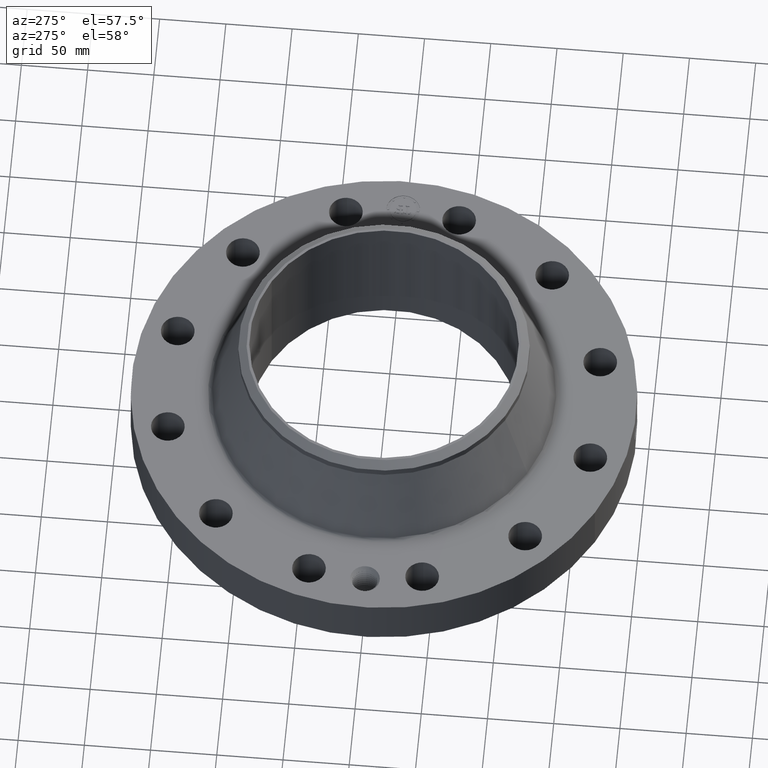
[diagram: clean part render]
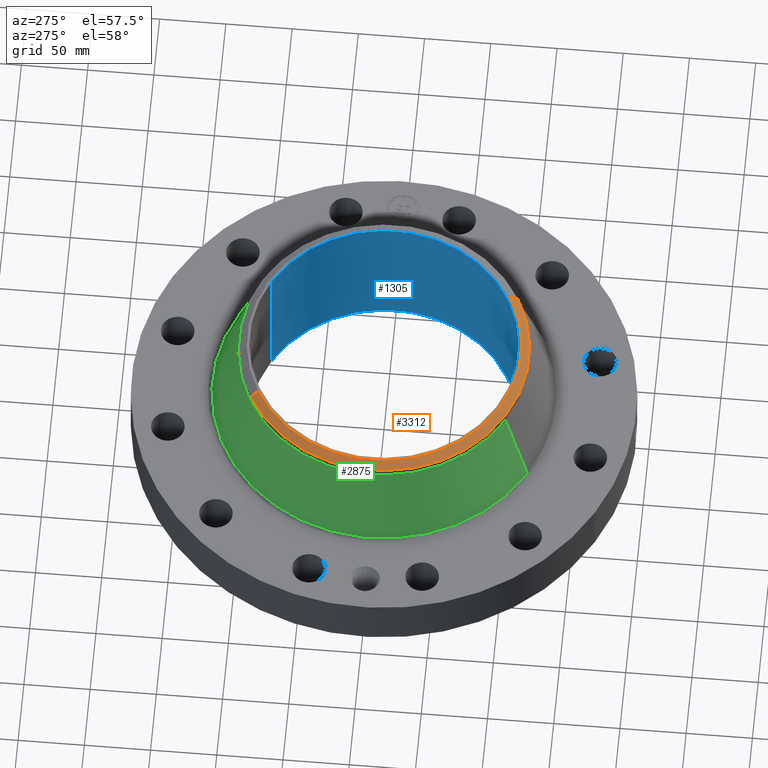
[diagram: same view with three faces highlighted in distinct colors, each labeled with its STEP entity id]
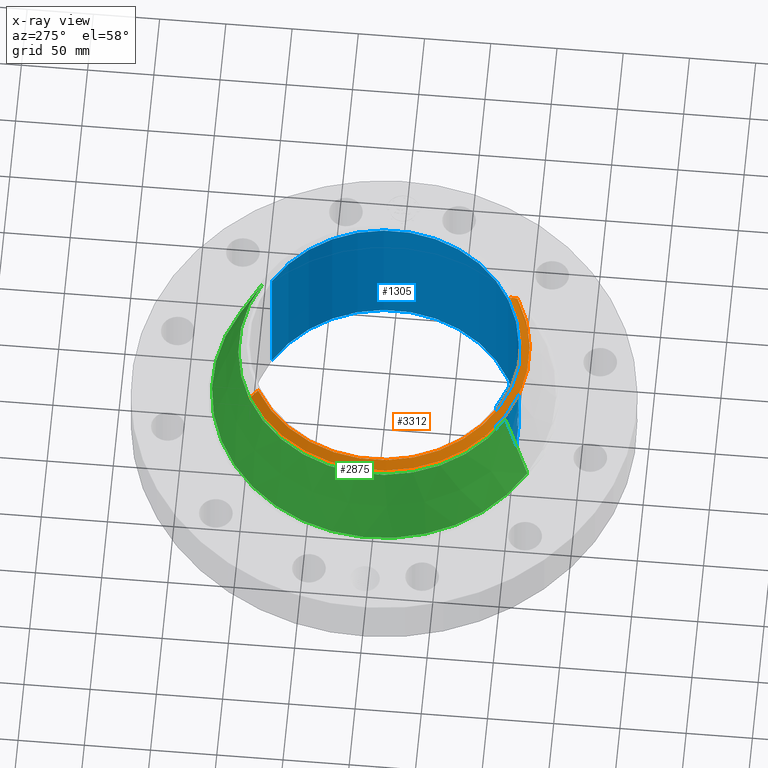
[diagram: x-ray of the same camera — body ghosted, the three highlighted faces saturated]
A machine part, auxiliary view with three faces highlighted in distinct colors.
The next image is the same camera in x-ray (body ghosted, the three faces saturated) — at least one of them is partly hidden behind the body in this view.
Their STEP definitions:

[orange] entity #3312 — the highlighted conical surface has half-angle 52.5 deg.
#2501=AXIS2_PLACEMENT_3D('Circle Axis2P3D',#2499,#2500,$) ;
#3277=AXIS2_PLACEMENT_3D('Cone Axis2P3D',#3274,#3275,#3276) ;
#3295=AXIS2_PLACEMENT_3D('Circle Axis2P3D',#3293,#3294,$) ;
#3302=AXIS2_PLACEMENT_3D('Circle Axis2P3D',#3300,#3301,$) ;
#2494=CARTESIAN_POINT('Vertex',(1.95089765422,-3.57109420236,4.44000000002)) ;
#2496=CARTESIAN_POINT('Vertex',(-1.95089765422,3.57109420236,4.44000000002)) ;
#2499=CARTESIAN_POINT('Axis2P3D Location',(0.,0.,4.44000000002)) ;
#3274=CARTESIAN_POINT('Axis2P3D Location',(0.,0.,4.44000000002)) ;
#3279=CARTESIAN_POINT('Line Origine',(2.00980942665,-3.67893147847,4.34571092015)) ;
#3283=CARTESIAN_POINT('Vertex',(2.06872119909,-3.78676875457,4.25142184029)) ;
#3286=CARTESIAN_POINT('Line Origine',(-2.00980942665,3.67893147847,4.34571092015)) ;
#3290=CARTESIAN_POINT('Vertex',(-2.06872119909,3.78676875457,4.25142184029)) ;
#3293=CARTESIAN_POINT('Axis2P3D Location',(0.,0.,4.25142184029)) ;
#3297=CARTESIAN_POINT('Vertex',(-2.06872119909,-3.78676875457,4.25142184029)) ;
#3300=CARTESIAN_POINT('Axis2P3D Location',(0.,0.,4.25142184029)) ;
#2500=DIRECTION('Axis2P3D Direction',(0.,0.,-0.0393700787402)) ;
#3275=DIRECTION('Axis2P3D Direction',(-0.,-0.,-0.0393700787402)) ;
#3276=DIRECTION('Axis2P3D XDirection',(-0.0188750212049,0.0345504945626,0.)) ;
#3280=DIRECTION('Vector Direction',(0.014974561121,-0.02741075027,-0.023966985394)) ;
#3287=DIRECTION('Vector Direction',(-0.014974561121,0.02741075027,-0.023966985394)) ;
#3294=DIRECTION('Axis2P3D Direction',(0.,0.,-0.0393700787402)) ;
#3301=DIRECTION('Axis2P3D Direction',(0.,0.,-0.0393700787402)) ;
#3281=VECTOR('Line Direction',#3280,0.0393700787402) ;
#3288=VECTOR('Line Direction',#3287,0.0393700787402) ;
#3306=ORIENTED_EDGE('',*,*,#3285,.F.) ;
#3307=ORIENTED_EDGE('',*,*,#2503,.F.) ;
#3308=ORIENTED_EDGE('',*,*,#3292,.T.) ;
#3309=ORIENTED_EDGE('',*,*,#3299,.T.) ;
#3310=ORIENTED_EDGE('',*,*,#3304,.F.) ;
#3312=ADVANCED_FACE('PartBody',(#3311),#3278,.T.) ;
#2502=CIRCLE('generated circle',#2501,4.0692401575) ;
#3296=CIRCLE('generated circle',#3295,4.31500000002) ;
#3303=CIRCLE('generated circle',#3302,4.31500000002) ;
#3278=CONICAL_SURFACE('Cone',#3277,4.0692401575,0.916297857297) ;
#2503=EDGE_CURVE('',#2497,#2495,#2502,.F.) ;
#3285=EDGE_CURVE('',#2495,#3284,#3282,.T.) ;
#3292=EDGE_CURVE('',#2497,#3291,#3289,.T.) ;
#3299=EDGE_CURVE('',#3291,#3298,#3296,.F.) ;
#3304=EDGE_CURVE('',#3284,#3298,#3303,.T.) ;
#3305=EDGE_LOOP('',(#3306,#3307,#3308,#3309,#3310)) ;
#3311=FACE_OUTER_BOUND('',#3305,.T.) ;
#3282=LINE('Line',#3279,#3281) ;
#3289=LINE('Line',#3286,#3288) ;
#2495=VERTEX_POINT('',#2494) ;
#2497=VERTEX_POINT('',#2496) ;
#3284=VERTEX_POINT('',#3283) ;
#3291=VERTEX_POINT('',#3290) ;
#3298=VERTEX_POINT('',#3297) ;

[blue] entity #1305 — the highlighted cylindrical surface (partial cylindrical patch) has radius 101.359 mm, axis along (0, 0, -1).
#214=AXIS2_PLACEMENT_3D('Circle Axis2P3D',#212,#213,$) ;
#1236=AXIS2_PLACEMENT_3D('Cylinder Axis2P3D',#1233,#1234,#1235) ;
#1240=AXIS2_PLACEMENT_3D('Circle Axis2P3D',#1238,#1239,$) ;
#212=CARTESIAN_POINT('Axis2P3D Location',(0.,0.,0.0600000000002)) ;
#216=CARTESIAN_POINT('Vertex',(1.91314761181,3.50199321324,0.0600000000002)) ;
#218=CARTESIAN_POINT('Vertex',(-1.91314761181,-3.50199321324,0.0600000000002)) ;
#1233=CARTESIAN_POINT('Axis2P3D Location',(0.,0.,2.25000000001)) ;
#1238=CARTESIAN_POINT('Axis2P3D Location',(0.,0.,4.44000000002)) ;
#1242=CARTESIAN_POINT('Vertex',(1.91314761181,3.50199321324,4.44000000002)) ;
#1244=CARTESIAN_POINT('Vertex',(-1.91314761181,-3.50199321324,4.44000000002)) ;
#1247=CARTESIAN_POINT('Line Origine',(1.91314761181,3.50199321324,2.25000000001)) ;
#1252=CARTESIAN_POINT('Line Origine',(-1.91314761181,-3.50199321324,2.25000000001)) ;
#1264=CARTESIAN_POINT('Control Point',(0.219395640473,-3.98446430566,0.820143615352)) ;
#1265=CARTESIAN_POINT('Control Point',(0.206921908816,-3.98515114387,0.797310602708)) ;
#1266=CARTESIAN_POINT('Control Point',(0.191479279916,-3.98595249709,0.776102972224)) ;
#1267=CARTESIAN_POINT('Control Point',(0.17334786153,-3.98680640054,0.75703273259)) ;
#1268=CARTESIAN_POINT('Control Point',(0.112155204432,-3.98927553641,0.707564028498)) ;
#1269=CARTESIAN_POINT('Control Point',(0.0350142039902,-3.99087971721,0.684034092529)) ;
#1270=CARTESIAN_POINT('Control Point',(-0.0195261078202,-3.99100007172,0.682387726651)) ;
#1271=CARTESIAN_POINT('Control Point',(-0.124101324567,-3.98923588509,0.707512475019)) ;
#1272=CARTESIAN_POINT('Control Point',(-0.203140141368,-3.98558147934,0.78038412542)) ;
#1273=CARTESIAN_POINT('Control Point',(-0.23212787438,-3.98378084191,0.826576361524)) ;
#1274=CARTESIAN_POINT('Control Point',(-0.255826572315,-3.98229644891,0.904741363627)) ;
#1275=CARTESIAN_POINT('Control Point',(-0.248307422965,-3.98276700729,0.984151968257)) ;
#1276=CARTESIAN_POINT('Control Point',(-0.242073059868,-3.98316297559,1.01075396356)) ;
#1277=CARTESIAN_POINT('Control Point',(-0.232330621096,-3.9837520698,1.03617906144)) ;
#1278=CARTESIAN_POINT('Control Point',(-0.219395640473,-3.98446430566,1.05985638466)) ;
#1279=CARTESIAN_POINT('Vertex',(0.219395640473,-3.98446430566,0.820143615352)) ;
#1281=CARTESIAN_POINT('Vertex',(-0.219395640473,-3.98446430566,1.05985638466)) ;
#1285=CARTESIAN_POINT('Control Point',(-0.219395640473,-3.98446430566,1.05985638466)) ;
#1286=CARTESIAN_POINT('Control Point',(-0.206921908817,-3.98515114387,1.0826893973)) ;
#1287=CARTESIAN_POINT('Control Point',(-0.19147927992,-3.98595249709,1.10389702778)) ;
#1288=CARTESIAN_POINT('Control Point',(-0.173347861519,-3.98680640055,1.12296726743)) ;
#1289=CARTESIAN_POINT('Control Point',(-0.112155204424,-3.98927553641,1.17243597151)) ;
#1290=CARTESIAN_POINT('Control Point',(-0.0350142039897,-3.99087971721,1.19596590748)) ;
#1291=CARTESIAN_POINT('Control Point',(0.0195261078346,-3.99100007172,1.19761227335)) ;
#1292=CARTESIAN_POINT('Control Point',(0.124101324582,-3.98923588509,1.17248752498)) ;
#1293=CARTESIAN_POINT('Control Point',(0.203140141381,-3.98558147934,1.09961587457)) ;
#1294=CARTESIAN_POINT('Control Point',(0.23212787438,-3.98378084191,1.05342363849)) ;
#1295=CARTESIAN_POINT('Control Point',(0.255826572316,-3.98229644891,0.97525863638)) ;
#1296=CARTESIAN_POINT('Control Point',(0.248307422964,-3.98276700729,0.895848031747)) ;
#1297=CARTESIAN_POINT('Control Point',(0.242073059867,-3.98316297559,0.869246036443)) ;
#1298=CARTESIAN_POINT('Control Point',(0.232330621096,-3.9837520698,0.843820938562)) ;
#1299=CARTESIAN_POINT('Control Point',(0.219395640473,-3.98446430566,0.820143615352)) ;
#213=DIRECTION('Axis2P3D Direction',(0.,0.,-0.0393700787402)) ;
#1234=DIRECTION('Axis2P3D Direction',(0.,0.,-0.0393700787402)) ;
#1235=DIRECTION('Axis2P3D XDirection',(-0.0188750212049,-0.0345504945626,0.)) ;
#1239=DIRECTION('Axis2P3D Direction',(0.,0.,-0.0393700787402)) ;
#1248=DIRECTION('Vector Direction',(0.,0.,-0.0393700787402)) ;
#1253=DIRECTION('Vector Direction',(0.,0.,-0.0393700787402)) ;
#1249=VECTOR('Line Direction',#1248,0.0393700787402) ;
#1254=VECTOR('Line Direction',#1253,0.0393700787402) ;
#1258=ORIENTED_EDGE('',*,*,#1246,.F.) ;
#1259=ORIENTED_EDGE('',*,*,#1251,.T.) ;
#1260=ORIENTED_EDGE('',*,*,#220,.T.) ;
#1261=ORIENTED_EDGE('',*,*,#1256,.F.) ;
#1302=ORIENTED_EDGE('',*,*,#1283,.F.) ;
#1303=ORIENTED_EDGE('',*,*,#1300,.F.) ;
#1304=FACE_BOUND('',#1301,.T.) ;
#1305=ADVANCED_FACE('PartBody',(#1262,#1304),#1237,.F.) ;
#1263=B_SPLINE_CURVE_WITH_KNOTS('',5,(#1264,#1265,#1266,#1267,#1268,#1269,#1270,#1271,#1272,#1273,#1274,#1275,#1276,#1277,#1278),.UNSPECIFIED.,.F.,.U.,(6,3,3,3,6),(0.,4.6746082802,14.0214498454,23.3713998536,28.2188640432),.UNSPECIFIED.) ;
#1284=B_SPLINE_CURVE_WITH_KNOTS('',5,(#1285,#1286,#1287,#1288,#1289,#1290,#1291,#1292,#1293,#1294,#1295,#1296,#1297,#1298,#1299),.UNSPECIFIED.,.F.,.U.,(6,3,3,3,6),(0.,4.67460827952,14.021449844,23.3713998532,28.2188640426),.UNSPECIFIED.) ;
#215=CIRCLE('generated circle',#214,3.99050000002) ;
#1241=CIRCLE('generated circle',#1240,3.99050000002) ;
#1237=CYLINDRICAL_SURFACE('generated cylinder',#1236,3.99050000002) ;
#220=EDGE_CURVE('',#217,#219,#215,.T.) ;
#1246=EDGE_CURVE('',#1243,#1245,#1241,.T.) ;
#1251=EDGE_CURVE('',#1243,#217,#1250,.T.) ;
#1256=EDGE_CURVE('',#1245,#219,#1255,.T.) ;
#1283=EDGE_CURVE('',#1280,#1282,#1263,.T.) ;
#1300=EDGE_CURVE('',#1282,#1280,#1284,.T.) ;
#1257=EDGE_LOOP('',(#1258,#1259,#1260,#1261)) ;
#1301=EDGE_LOOP('',(#1302,#1303)) ;
#1262=FACE_OUTER_BOUND('',#1257,.T.) ;
#1250=LINE('Line',#1247,#1249) ;
#1255=LINE('Line',#1252,#1254) ;
#217=VERTEX_POINT('',#216) ;
#219=VERTEX_POINT('',#218) ;
#1243=VERTEX_POINT('',#1242) ;
#1245=VERTEX_POINT('',#1244) ;
#1280=VERTEX_POINT('',#1279) ;
#1282=VERTEX_POINT('',#1281) ;

[green] entity #2875 — the highlighted conical surface has half-angle 19.13 deg.
#2120=AXIS2_PLACEMENT_3D('Circle Axis2P3D',#2118,#2119,$) ;
#2836=AXIS2_PLACEMENT_3D('Cone Axis2P3D',#2833,#2834,#2835) ;
#2866=AXIS2_PLACEMENT_3D('Circle Axis2P3D',#2864,#2865,$) ;
#2096=CARTESIAN_POINT('Vertex',(2.44363999991,4.47305301612,1.76067472505)) ;
#2103=CARTESIAN_POINT('Vertex',(-2.44363999991,-4.47305301612,1.76067472505)) ;
#2118=CARTESIAN_POINT('Axis2P3D Location',(0.,0.,1.76067472505)) ;
#2833=CARTESIAN_POINT('Axis2P3D Location',(0.,0.,4.01520136785)) ;
#2838=CARTESIAN_POINT('Line Origine',(2.2561805995,4.12991088535,2.88793804645)) ;
#2842=CARTESIAN_POINT('Vertex',(2.06872119909,3.78676875457,4.01520136785)) ;
#2849=CARTESIAN_POINT('Vertex',(-2.06872119909,-3.78676875457,4.01520136785)) ;
#2852=CARTESIAN_POINT('Line Origine',(-2.2561805995,-4.12991088535,2.88793804645)) ;
#2864=CARTESIAN_POINT('Axis2P3D Location',(0.,0.,4.01520136785)) ;
#2119=DIRECTION('Axis2P3D Direction',(0.,0.,-0.0393700787402)) ;
#2834=DIRECTION('Axis2P3D Direction',(0.,0.,-0.0393700787402)) ;
#2835=DIRECTION('Axis2P3D XDirection',(-0.0188750212049,-0.0345504945626,0.)) ;
#2839=DIRECTION('Vector Direction',(0.00618554498858,0.0113225641537,-0.0371959900283)) ;
#2853=DIRECTION('Vector Direction',(-0.00618554498858,-0.0113225641537,-0.0371959900283)) ;
#2865=DIRECTION('Axis2P3D Direction',(0.,0.,-0.0393700787402)) ;
#2840=VECTOR('Line Direction',#2839,0.0393700787402) ;
#2854=VECTOR('Line Direction',#2853,0.0393700787402) ;
#2870=ORIENTED_EDGE('',*,*,#2122,.F.) ;
#2871=ORIENTED_EDGE('',*,*,#2856,.T.) ;
#2872=ORIENTED_EDGE('',*,*,#2868,.T.) ;
#2873=ORIENTED_EDGE('',*,*,#2844,.F.) ;
#2875=ADVANCED_FACE('PartBody',(#2874),#2837,.T.) ;
#2121=CIRCLE('generated circle',#2120,5.09701674847) ;
#2867=CIRCLE('generated circle',#2866,4.31500000002) ;
#2837=CONICAL_SURFACE('Cone',#2836,4.31500000002,0.333879365211) ;
#2122=EDGE_CURVE('',#2104,#2097,#2121,.T.) ;
#2844=EDGE_CURVE('',#2097,#2843,#2841,.F.) ;
#2856=EDGE_CURVE('',#2104,#2850,#2855,.F.) ;
#2868=EDGE_CURVE('',#2850,#2843,#2867,.T.) ;
#2869=EDGE_LOOP('',(#2870,#2871,#2872,#2873)) ;
#2874=FACE_OUTER_BOUND('',#2869,.T.) ;
#2841=LINE('Line',#2838,#2840) ;
#2855=LINE('Line',#2852,#2854) ;
#2097=VERTEX_POINT('',#2096) ;
#2104=VERTEX_POINT('',#2103) ;
#2843=VERTEX_POINT('',#2842) ;
#2850=VERTEX_POINT('',#2849) ;